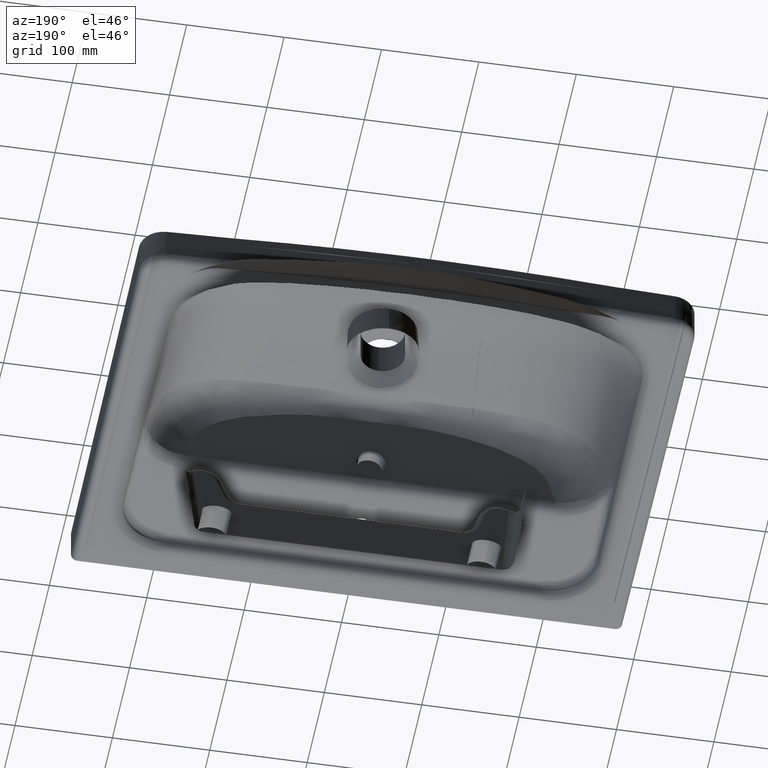
[diagram: clean part render]
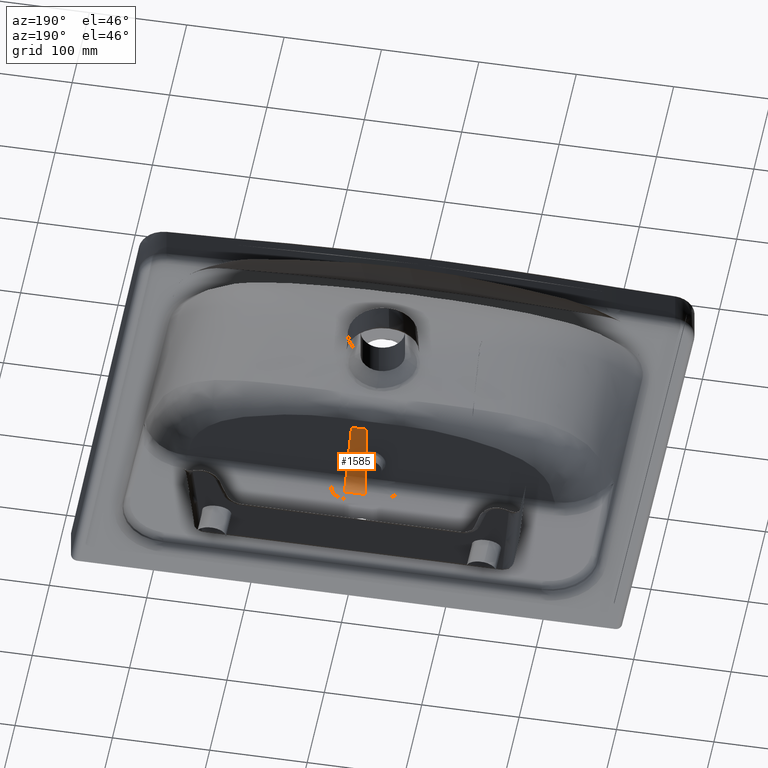
[diagram: same view with one face highlighted and labeled with its STEP entity id]
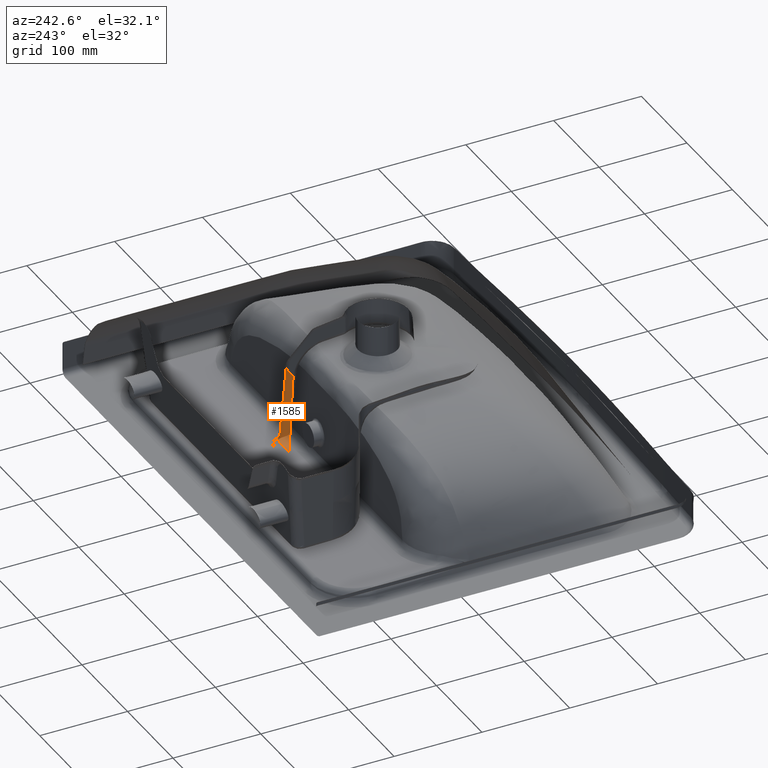
[diagram: same view with one face highlighted and labeled with its STEP entity id]
A machine part, auxiliary view. The second image highlights one B-rep face of the part: STEP entity #1585.
A second angle (auxiliary view) of the same face is appended — the face is thin or edge-on in the first view.
In plain terms, the highlighted planar face has unit normal (-0, 0.9986, 0.0523).
Its self-contained STEP definition (entity closure, byte-faithful):
#916=LINE('',#18045,#1176);
#927=LINE('',#19208,#1187);
#928=LINE('',#19210,#1188);
#929=LINE('',#19212,#1189);
#1176=VECTOR('',#9431,1.);
#1187=VECTOR('',#9520,1.);
#1188=VECTOR('',#9521,1.);
#1189=VECTOR('',#9522,1.);
#1585=ADVANCED_FACE('',(#2215),#1980,.T.);
#1980=PLANE('',#8784);
#2215=FACE_OUTER_BOUND('',#2762,.T.);
#2762=EDGE_LOOP('',(#3970,#3971,#3972,#3973));
#3970=ORIENTED_EDGE('',*,*,#7094,.T.);
#3971=ORIENTED_EDGE('',*,*,#7095,.T.);
#3972=ORIENTED_EDGE('',*,*,#7096,.F.);
#3973=ORIENTED_EDGE('',*,*,#7002,.T.);
#6101=VERTEX_POINT('',#18044);
#6102=VERTEX_POINT('',#18046);
#6157=VERTEX_POINT('',#19209);
#6158=VERTEX_POINT('',#19211);
#7002=EDGE_CURVE('',#6102,#6101,#916,.T.);
#7094=EDGE_CURVE('',#6101,#6157,#927,.T.);
#7095=EDGE_CURVE('',#6157,#6158,#928,.T.);
#7096=EDGE_CURVE('',#6102,#6158,#929,.T.);
#8784=AXIS2_PLACEMENT_3D('',#19213,#9523,#9524);
#9431=DIRECTION('',(-1.,0.,0.));
#9520=DIRECTION('',(-0.0699595505129532,0.0522077241995018,0.996182721605798));
#9521=DIRECTION('',(1.,0.,0.));
#9522=DIRECTION('',(4.97695466458844E-017,0.0523359562429497,0.998629534754574));
#9523=DIRECTION('',(0.,0.998629534754574,-0.0523359562429497));
#9524=DIRECTION('',(0.,0.0523359562429497,0.998629534754574));
#18044=CARTESIAN_POINT('',(-15.1575405634443,126.132530047138,-125.125875294074));
#18045=CARTESIAN_POINT('',(25.4003039322001,126.132530047138,-125.125875294074));
#18046=CARTESIAN_POINT('',(5.2019166221599E-014,126.132530047138,-125.125875294074));
#19208=CARTESIAN_POINT('',(-15.0929825135559,126.084353224406,-126.045143833792));
#19209=CARTESIAN_POINT('',(-21.4868238405844,130.855794752108,-35.0006158462153));
#19210=CARTESIAN_POINT('',(25.4003039322001,130.855794752108,-35.0006158462153));
#19211=CARTESIAN_POINT('',(2.7601931309384E-014,130.855794752108,-35.0006158462153));
#19212=CARTESIAN_POINT('',(1.0623785135424E-013,126.48919615852,-118.320280470918));
#19213=CARTESIAN_POINT('',(25.4003039322001,126.232979502162,-123.209185512546));